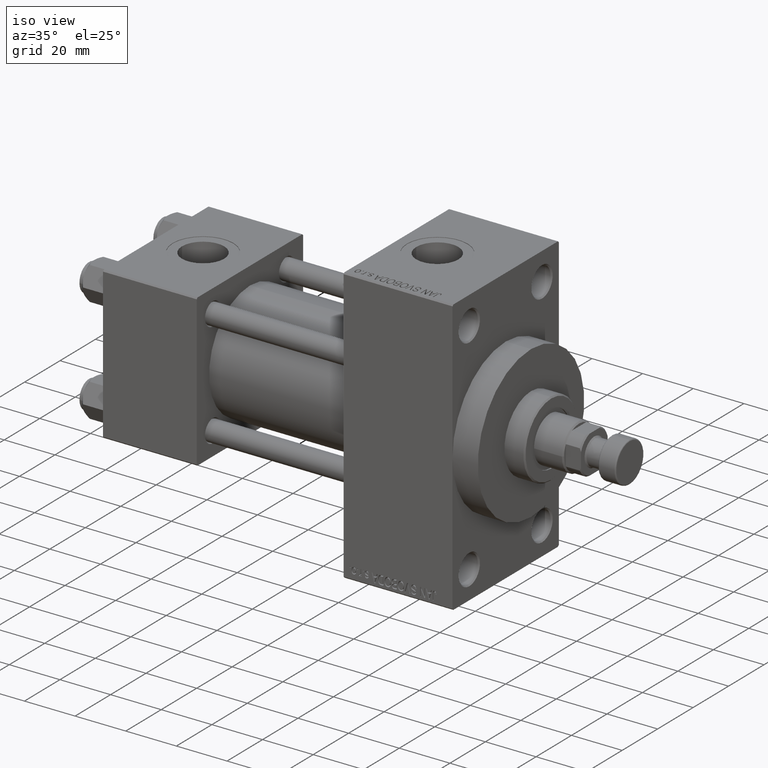
[diagram: clean part render]
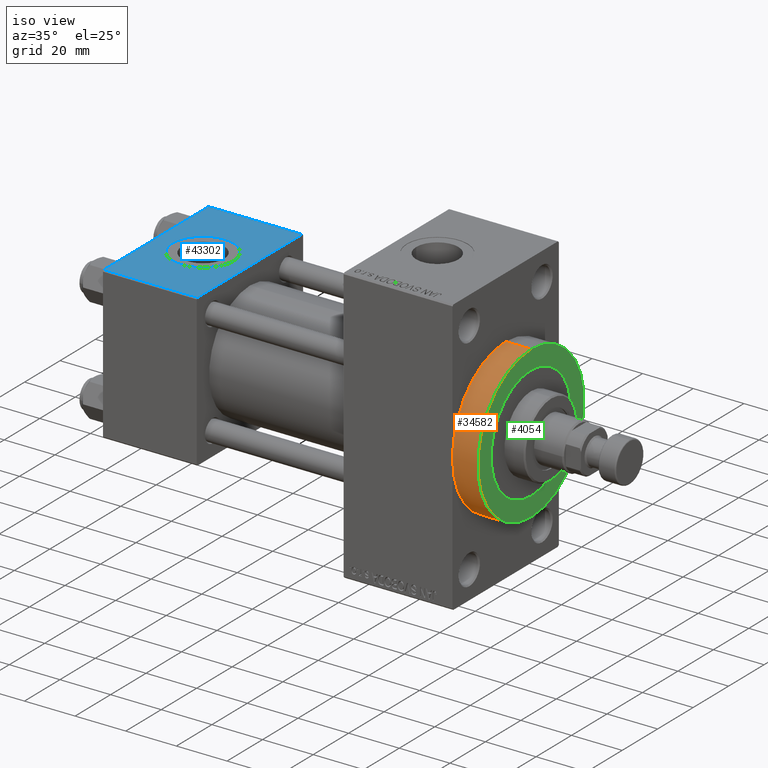
[diagram: same view with three faces highlighted in distinct colors, each labeled with its STEP entity id]
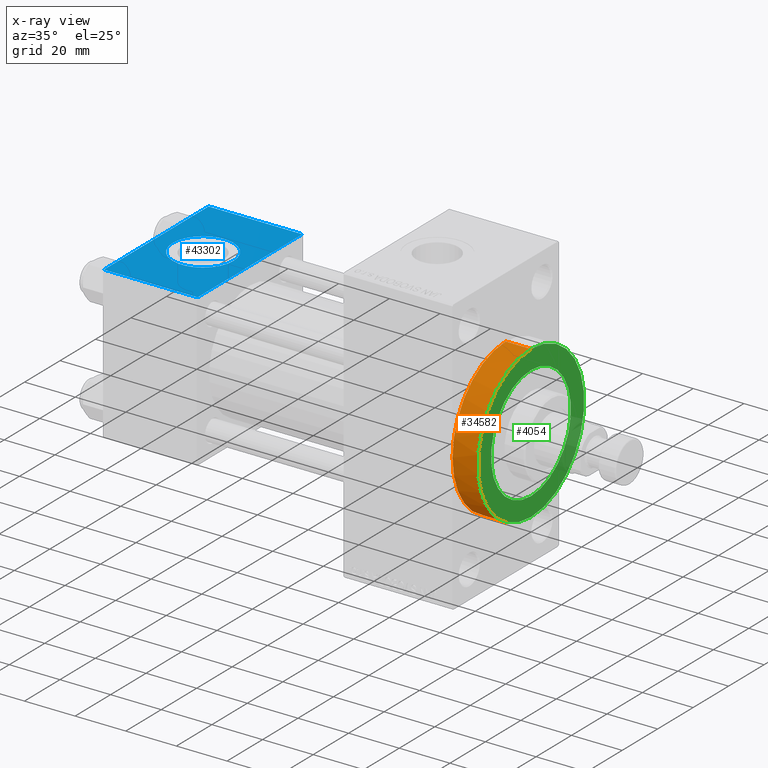
[diagram: x-ray of the same camera — body ghosted, the three highlighted faces saturated]
A machine part, iso view with three faces highlighted in distinct colors.
The next image is the same camera in x-ray (body ghosted, the three faces saturated) — at least one of them is partly hidden behind the body in this view.
Their STEP definitions:

[orange] entity #34582 — the highlighted cylindrical surface (partial cylindrical patch) has radius 30 mm, axis along (-1, -0, -0).
#743 = EDGE_CURVE ( 'NONE', #23998, #49178, #35937, .T. ) ;
#760 = ORIENTED_EDGE ( 'NONE', *, *, #2927, .F. ) ;
#2927 = EDGE_CURVE ( 'NONE', #35675, #49178, #20466, .T. ) ;
#5247 = ORIENTED_EDGE ( 'NONE', *, *, #14299, .T. ) ;
#5827 = DIRECTION ( 'NONE',  ( 0.000000000000000000, 0.000000000000000000, -1.000000000000000000 ) ) ;
#5865 = DIRECTION ( 'NONE',  ( -1.000000000000000000, -0.000000000000000000, -0.000000000000000000 ) ) ;
#6816 = DIRECTION ( 'NONE',  ( 1.000000000000000000, 0.000000000000000000, 0.000000000000000000 ) ) ;
#9481 = CARTESIAN_POINT ( 'NONE',  ( 148.0000000000000284, 0.000000000000000000, 30.00000000000000000 ) ) ;
#11392 = AXIS2_PLACEMENT_3D ( 'NONE', #39852, #17462, #39348 ) ;
#12058 = VERTEX_POINT ( 'NONE', #40585 ) ;
#12930 = DIRECTION ( 'NONE',  ( -1.000000000000000000, -0.000000000000000000, -0.000000000000000000 ) ) ;
#13892 = DIRECTION ( 'NONE',  ( 0.000000000000000000, 0.000000000000000000, -1.000000000000000000 ) ) ;
#14124 = DIRECTION ( 'NONE',  ( 1.000000000000000000, 0.000000000000000000, 0.000000000000000000 ) ) ;
#14299 = EDGE_CURVE ( 'NONE', #27494, #12058, #14694, .T. ) ;
#14632 = CARTESIAN_POINT ( 'NONE',  ( 138.0000000000000000, 0.000000000000000000, 0.000000000000000000 ) ) ;
#14694 = LINE ( 'NONE', #49381, #32621 ) ;
#16370 = AXIS2_PLACEMENT_3D ( 'NONE', #35817, #5865, #32533 ) ;
#17462 = DIRECTION ( 'NONE',  ( 1.000000000000000000, 0.000000000000000000, 0.000000000000000000 ) ) ;
#17544 = VECTOR ( 'NONE', #12930, 1000.000000000000000 ) ;
#19425 = CIRCLE ( 'NONE', #11392, 30.00000000000000000 ) ;
#20466 = LINE ( 'NONE', #35819, #17544 ) ;
#23224 = FACE_OUTER_BOUND ( 'NONE', #44379, .T. ) ;
#23998 = VERTEX_POINT ( 'NONE', #36775 ) ;
#24705 = ORIENTED_EDGE ( 'NONE', *, *, #743, .T. ) ;
#26260 = CARTESIAN_POINT ( 'NONE',  ( 138.0000000000000000, 3.673940397442059178E-15, -30.00000000000000000 ) ) ;
#27494 = VERTEX_POINT ( 'NONE', #9481 ) ;
#30007 = DIRECTION ( 'NONE',  ( -1.000000000000000000, -0.000000000000000000, -0.000000000000000000 ) ) ;
#30560 = EDGE_CURVE ( 'NONE', #27494, #35675, #19425, .T. ) ;
#32533 = DIRECTION ( 'NONE',  ( 0.000000000000000000, 0.000000000000000000, 1.000000000000000000 ) ) ;
#32621 = VECTOR ( 'NONE', #30007, 1000.000000000000000 ) ;
#33294 = EDGE_CURVE ( 'NONE', #12058, #23998, #38787, .T. ) ;
#34582 = ADVANCED_FACE ( 'NONE', ( #23224 ), #46353, .T. ) ;
#35675 = VERTEX_POINT ( 'NONE', #40151 ) ;
#35817 = CARTESIAN_POINT ( 'NONE',  ( 148.0000000000000284, 0.000000000000000000, 0.000000000000000000 ) ) ;
#35819 = CARTESIAN_POINT ( 'NONE',  ( 148.0000000000000284, 3.673940397442059178E-15, -30.00000000000000000 ) ) ;
#35937 = CIRCLE ( 'NONE', #47158, 30.00000000000000000 ) ;
#36775 = CARTESIAN_POINT ( 'NONE',  ( 138.0000000000000000, -30.00000000000000000, 0.000000000000000000 ) ) ;
#37245 = CARTESIAN_POINT ( 'NONE',  ( 138.0000000000000000, 0.000000000000000000, 0.000000000000000000 ) ) ;
#38787 = CIRCLE ( 'NONE', #42847, 30.00000000000000000 ) ;
#39348 = DIRECTION ( 'NONE',  ( 0.000000000000000000, 0.000000000000000000, -1.000000000000000000 ) ) ;
#39852 = CARTESIAN_POINT ( 'NONE',  ( 148.0000000000000284, 0.000000000000000000, 0.000000000000000000 ) ) ;
#40151 = CARTESIAN_POINT ( 'NONE',  ( 148.0000000000000284, 3.673940397442059178E-15, -30.00000000000000000 ) ) ;
#40585 = CARTESIAN_POINT ( 'NONE',  ( 138.0000000000000000, 0.000000000000000000, 30.00000000000000000 ) ) ;
#41996 = ORIENTED_EDGE ( 'NONE', *, *, #33294, .T. ) ;
#42847 = AXIS2_PLACEMENT_3D ( 'NONE', #37245, #14124, #5827 ) ;
#43156 = ORIENTED_EDGE ( 'NONE', *, *, #30560, .F. ) ;
#44379 = EDGE_LOOP ( 'NONE', ( #760, #43156, #5247, #41996, #24705 ) ) ;
#46353 = CYLINDRICAL_SURFACE ( 'NONE', #16370, 30.00000000000000000 ) ;
#47158 = AXIS2_PLACEMENT_3D ( 'NONE', #14632, #6816, #13892 ) ;
#49178 = VERTEX_POINT ( 'NONE', #26260 ) ;
#49381 = CARTESIAN_POINT ( 'NONE',  ( 148.0000000000000284, 0.000000000000000000, 30.00000000000000000 ) ) ;

[blue] entity #43302 — the highlighted planar face has unit normal (0, 0, -1).
#44 = VECTOR ( 'NONE', #13537, 1000.000000000000000 ) ;
#776 = CARTESIAN_POINT ( 'NONE',  ( 0.000000000000000000, -29.49999999999998579, 29.99999999999999289 ) ) ;
#852 = VERTEX_POINT ( 'NONE', #34222 ) ;
#1470 = EDGE_CURVE ( 'NONE', #4816, #7185, #9511, .T. ) ;
#1961 = DIRECTION ( 'NONE',  ( 0.000000000000000000, -1.000000000000000000, -1.156482317317871725E-16 ) ) ;
#3799 = DIRECTION ( 'NONE',  ( 0.000000000000000000, 0.000000000000000000, 1.000000000000000000 ) ) ;
#4491 = PLANE ( 'NONE',  #30788 ) ;
#4528 = CARTESIAN_POINT ( 'NONE',  ( 37.00000000000000000, -29.49999999999998579, 29.99999999999999289 ) ) ;
#4816 = VERTEX_POINT ( 'NONE', #33499 ) ;
#7034 = FACE_BOUND ( 'NONE', #40575, .T. ) ;
#7185 = VERTEX_POINT ( 'NONE', #4528 ) ;
#8752 = EDGE_CURVE ( 'NONE', #4816, #852, #21069, .T. ) ;
#9046 = VECTOR ( 'NONE', #36813, 1000.000000000000000 ) ;
#9511 = LINE ( 'NONE', #33385, #33540 ) ;
#11217 = EDGE_CURVE ( 'NONE', #45819, #33376, #18598, .T. ) ;
#12167 = EDGE_CURVE ( 'NONE', #33376, #45819, #33003, .T. ) ;
#12387 = VECTOR ( 'NONE', #38441, 1000.000000000000000 ) ;
#13537 = DIRECTION ( 'NONE',  ( -1.000000000000000000, 0.000000000000000000, 0.000000000000000000 ) ) ;
#18598 = CIRCLE ( 'NONE', #25047, 12.00000000000000000 ) ;
#18660 = CARTESIAN_POINT ( 'NONE',  ( 18.50000000000000000, -3.469446951953614978E-15, 29.99999999999999645 ) ) ;
#19142 = DIRECTION ( 'NONE',  ( 1.000000000000000000, 0.000000000000000000, 0.000000000000000000 ) ) ;
#20087 = CARTESIAN_POINT ( 'NONE',  ( 6.499999999999997335, -1.999870792976790833E-15, 29.99999999999999645 ) ) ;
#20223 = EDGE_LOOP ( 'NONE', ( #47156, #48882, #26326, #27963 ) ) ;
#21069 = LINE ( 'NONE', #48468, #44 ) ;
#23617 = DIRECTION ( 'NONE',  ( 0.000000000000000000, 1.156482317317871725E-16, -1.000000000000000000 ) ) ;
#24998 = LINE ( 'NONE', #36574, #9046 ) ;
#25047 = AXIS2_PLACEMENT_3D ( 'NONE', #18660, #34011, #49341 ) ;
#26326 = ORIENTED_EDGE ( 'NONE', *, *, #1470, .F. ) ;
#27331 = AXIS2_PLACEMENT_3D ( 'NONE', #46056, #3799, #19142 ) ;
#27963 = ORIENTED_EDGE ( 'NONE', *, *, #8752, .T. ) ;
#30169 = CARTESIAN_POINT ( 'NONE',  ( 30.50000000000000000, -3.469446951953614978E-15, 29.99999999999999645 ) ) ;
#30637 = CARTESIAN_POINT ( 'NONE',  ( 37.00000000000000000, -29.50000000000000000, 29.99999999999999289 ) ) ;
#30788 = AXIS2_PLACEMENT_3D ( 'NONE', #45996, #23617, #31142 ) ;
#31142 = DIRECTION ( 'NONE',  ( 0.000000000000000000, 1.000000000000000000, 1.156482317317871725E-16 ) ) ;
#31932 = EDGE_CURVE ( 'NONE', #852, #42707, #24998, .T. ) ;
#33003 = CIRCLE ( 'NONE', #27331, 12.00000000000000000 ) ;
#33376 = VERTEX_POINT ( 'NONE', #30169 ) ;
#33385 = CARTESIAN_POINT ( 'NONE',  ( 37.00000000000000000, 29.99999999999999289, 30.00000000000000000 ) ) ;
#33499 = CARTESIAN_POINT ( 'NONE',  ( 37.00000000000000000, 29.49999999999999289, 30.00000000000000000 ) ) ;
#33540 = VECTOR ( 'NONE', #1961, 1000.000000000000000 ) ;
#34011 = DIRECTION ( 'NONE',  ( 0.000000000000000000, 0.000000000000000000, 1.000000000000000000 ) ) ;
#34222 = CARTESIAN_POINT ( 'NONE',  ( 0.000000000000000000, 29.49999999999999289, 30.00000000000000000 ) ) ;
#35137 = EDGE_CURVE ( 'NONE', #42707, #7185, #41471, .T. ) ;
#36574 = CARTESIAN_POINT ( 'NONE',  ( 0.000000000000000000, 29.99999999999999289, 30.00000000000000000 ) ) ;
#36813 = DIRECTION ( 'NONE',  ( 0.000000000000000000, -1.000000000000000000, -1.156482317317871725E-16 ) ) ;
#38441 = DIRECTION ( 'NONE',  ( 1.000000000000000000, 0.000000000000000000, 0.000000000000000000 ) ) ;
#40575 = EDGE_LOOP ( 'NONE', ( #48387, #43316 ) ) ;
#41471 = LINE ( 'NONE', #30637, #12387 ) ;
#42707 = VERTEX_POINT ( 'NONE', #776 ) ;
#43302 = ADVANCED_FACE ( 'NONE', ( #7034, #46240 ), #4491, .F. ) ;
#43316 = ORIENTED_EDGE ( 'NONE', *, *, #11217, .F. ) ;
#45819 = VERTEX_POINT ( 'NONE', #20087 ) ;
#45996 = CARTESIAN_POINT ( 'NONE',  ( 37.00000000000000000, 29.99999999999999289, 30.00000000000000000 ) ) ;
#46056 = CARTESIAN_POINT ( 'NONE',  ( 18.50000000000000000, -3.469446951953614978E-15, 29.99999999999999645 ) ) ;
#46240 = FACE_OUTER_BOUND ( 'NONE', #20223, .T. ) ;
#47156 = ORIENTED_EDGE ( 'NONE', *, *, #31932, .T. ) ;
#48387 = ORIENTED_EDGE ( 'NONE', *, *, #12167, .F. ) ;
#48468 = CARTESIAN_POINT ( 'NONE',  ( 0.000000000000000000, 29.49999999999999289, 30.00000000000000000 ) ) ;
#48882 = ORIENTED_EDGE ( 'NONE', *, *, #35137, .T. ) ;
#49341 = DIRECTION ( 'NONE',  ( 1.000000000000000000, 0.000000000000000000, 0.000000000000000000 ) ) ;

[green] entity #4054 — the highlighted planar face has unit normal (1, 0, 0).
#898 = VERTEX_POINT ( 'NONE', #41755 ) ;
#3139 = DIRECTION ( 'NONE',  ( 1.000000000000000000, 0.000000000000000000, 0.000000000000000000 ) ) ;
#3339 = AXIS2_PLACEMENT_3D ( 'NONE', #9279, #27874, #32155 ) ;
#3827 = EDGE_CURVE ( 'NONE', #41403, #898, #42406, .T. ) ;
#3896 = AXIS2_PLACEMENT_3D ( 'NONE', #38991, #38267, #46522 ) ;
#4054 = ADVANCED_FACE ( 'NONE', ( #17658, #48332 ), #40784, .T. ) ;
#6326 = AXIS2_PLACEMENT_3D ( 'NONE', #15161, #45108, #30476 ) ;
#6558 = CIRCLE ( 'NONE', #34665, 30.00000000000000000 ) ;
#9279 = CARTESIAN_POINT ( 'NONE',  ( 148.0000000000000284, 0.000000000000000000, 0.000000000000000000 ) ) ;
#9480 = EDGE_LOOP ( 'NONE', ( #44425, #49555 ) ) ;
#9481 = CARTESIAN_POINT ( 'NONE',  ( 148.0000000000000284, 0.000000000000000000, 30.00000000000000000 ) ) ;
#10648 = EDGE_CURVE ( 'NONE', #898, #41403, #26622, .T. ) ;
#11392 = AXIS2_PLACEMENT_3D ( 'NONE', #39852, #17462, #39348 ) ;
#12342 = ORIENTED_EDGE ( 'NONE', *, *, #30333, .T. ) ;
#15161 = CARTESIAN_POINT ( 'NONE',  ( 148.0000000000000284, 0.000000000000000000, 0.000000000000000000 ) ) ;
#17462 = DIRECTION ( 'NONE',  ( 1.000000000000000000, 0.000000000000000000, 0.000000000000000000 ) ) ;
#17658 = FACE_BOUND ( 'NONE', #9480, .T. ) ;
#19425 = CIRCLE ( 'NONE', #11392, 30.00000000000000000 ) ;
#26273 = CARTESIAN_POINT ( 'NONE',  ( 148.0000000000000284, 0.000000000000000000, 0.000000000000000000 ) ) ;
#26512 = DIRECTION ( 'NONE',  ( 0.000000000000000000, 0.000000000000000000, -1.000000000000000000 ) ) ;
#26622 = CIRCLE ( 'NONE', #3339, 22.50000000000000355 ) ;
#27111 = EDGE_LOOP ( 'NONE', ( #33965, #12342 ) ) ;
#27494 = VERTEX_POINT ( 'NONE', #9481 ) ;
#27874 = DIRECTION ( 'NONE',  ( 1.000000000000000000, 0.000000000000000000, 0.000000000000000000 ) ) ;
#30333 = EDGE_CURVE ( 'NONE', #35675, #27494, #6558, .T. ) ;
#30476 = DIRECTION ( 'NONE',  ( 0.000000000000000000, 0.000000000000000000, -1.000000000000000000 ) ) ;
#30560 = EDGE_CURVE ( 'NONE', #27494, #35675, #19425, .T. ) ;
#32155 = DIRECTION ( 'NONE',  ( 0.000000000000000000, 0.000000000000000000, -1.000000000000000000 ) ) ;
#33965 = ORIENTED_EDGE ( 'NONE', *, *, #30560, .T. ) ;
#34051 = CARTESIAN_POINT ( 'NONE',  ( 148.0000000000000284, 2.755455298081545172E-15, 22.50000000000000355 ) ) ;
#34665 = AXIS2_PLACEMENT_3D ( 'NONE', #26273, #3139, #26512 ) ;
#35675 = VERTEX_POINT ( 'NONE', #40151 ) ;
#38267 = DIRECTION ( 'NONE',  ( 1.000000000000000000, 0.000000000000000000, 0.000000000000000000 ) ) ;
#38991 = CARTESIAN_POINT ( 'NONE',  ( 148.0000000000000284, 0.000000000000000000, 0.000000000000000000 ) ) ;
#39348 = DIRECTION ( 'NONE',  ( 0.000000000000000000, 0.000000000000000000, -1.000000000000000000 ) ) ;
#39852 = CARTESIAN_POINT ( 'NONE',  ( 148.0000000000000284, 0.000000000000000000, 0.000000000000000000 ) ) ;
#40151 = CARTESIAN_POINT ( 'NONE',  ( 148.0000000000000284, 3.673940397442059178E-15, -30.00000000000000000 ) ) ;
#40784 = PLANE ( 'NONE',  #3896 ) ;
#41403 = VERTEX_POINT ( 'NONE', #34051 ) ;
#41755 = CARTESIAN_POINT ( 'NONE',  ( 148.0000000000000284, 0.000000000000000000, -22.50000000000000355 ) ) ;
#42406 = CIRCLE ( 'NONE', #6326, 22.50000000000000355 ) ;
#44425 = ORIENTED_EDGE ( 'NONE', *, *, #10648, .F. ) ;
#45108 = DIRECTION ( 'NONE',  ( 1.000000000000000000, 0.000000000000000000, 0.000000000000000000 ) ) ;
#46522 = DIRECTION ( 'NONE',  ( 0.000000000000000000, 0.000000000000000000, -1.000000000000000000 ) ) ;
#48332 = FACE_OUTER_BOUND ( 'NONE', #27111, .T. ) ;
#49555 = ORIENTED_EDGE ( 'NONE', *, *, #3827, .F. ) ;